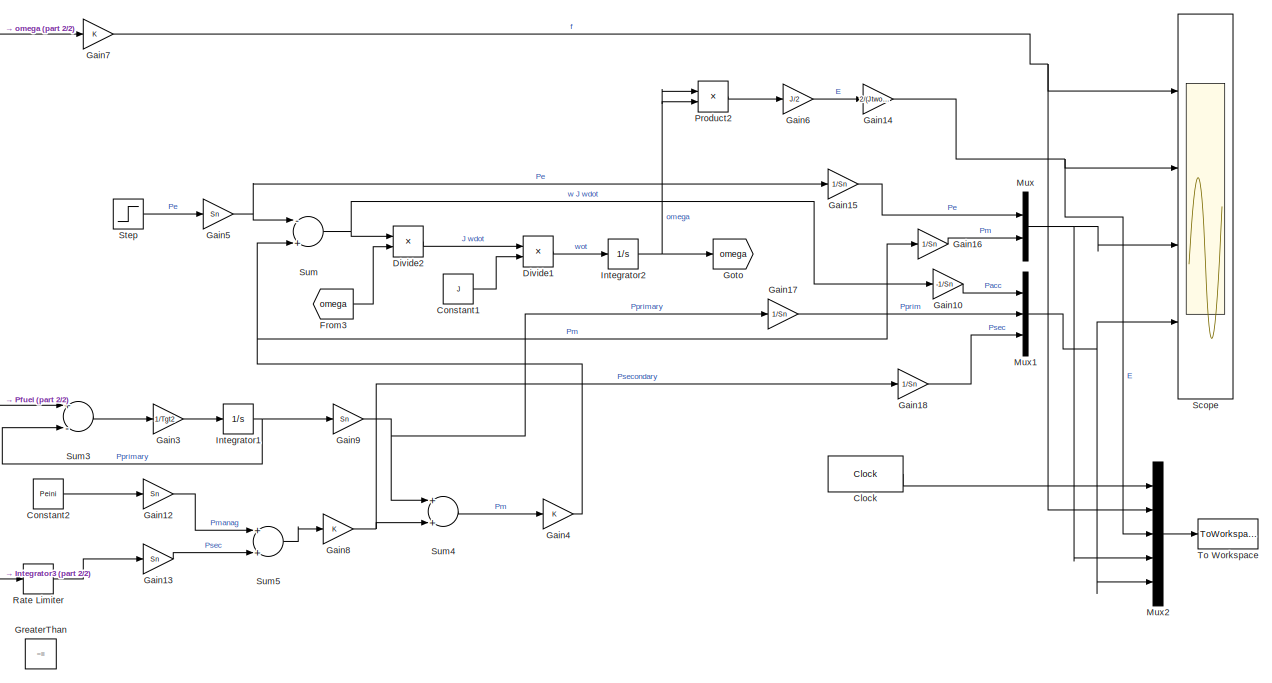
[diagram: root canvas - part 1/2, right side, full height]
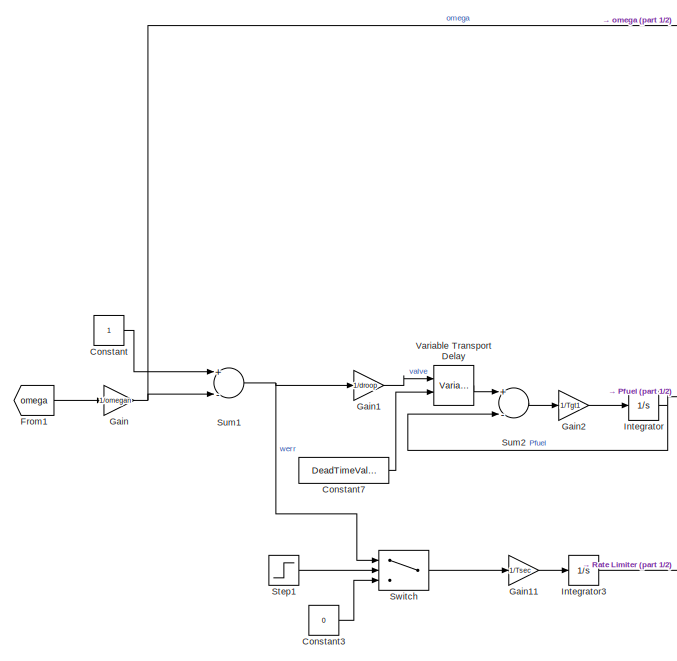
[diagram: root canvas - part 2/2, left side, full height]
MODEL slx_6105c109075a
KIND model
CONFIG AbsTol = auto
CONFIG EnableMultiTasking = off
CONFIG FixedStep = auto
CONFIG MaxStep = 0.1
CONFIG MinStep = auto
CONFIG RelTol = 1e-3
CONFIG SampleTimeConstraint = Unconstrained
CONFIG Solver = VariableStepAuto
CONFIG SolverName = VariableStepAuto
CONFIG StartTime = 0.0
CONFIG StopTime = Ttot
BLOCK [Clock] Clock
  DisplayTime = on
BLOCK [Constant] Constant
BLOCK [Constant] Constant1
  Value = J
BLOCK [Constant] Constant2
  Value = Peini
BLOCK [Constant] Constant3
  Value = 0
BLOCK [Constant] Constant7
  Value = DeadTimeValve
BLOCK [Product] Divide1
  InputSameDT = off
  Inputs = */
  OutDataTypeStr = Inherit: Inherit via internal rule
  Ports = [2, 1]
  RndMeth = Floor
  SaturateOnIntegerOverflow = off
BLOCK [Product] Divide2
  InputSameDT = off
  Inputs = */
  OutDataTypeStr = Inherit: Inherit via internal rule
  Ports = [2, 1]
  RndMeth = Floor
  SaturateOnIntegerOverflow = off
BLOCK [From] From1
  GotoTag = omega
BLOCK [From] From3
  GotoTag = omega
BLOCK [Gain] Gain
  Gain = 1/omegan
  OutDataTypeStr = Inherit: Inherit via internal rule
  ParamDataTypeStr = Inherit: Inherit via internal rule
  SaturateOnIntegerOverflow = off
BLOCK [Gain] Gain1
  Gain = 1/droop
  OutDataTypeStr = Inherit: Inherit via internal rule
  ParamDataTypeStr = Inherit: Inherit via internal rule
  SaturateOnIntegerOverflow = off
BLOCK [Gain] Gain10
  Gain = -1/Sn
  OutDataTypeStr = Inherit: Inherit via internal rule
  ParamDataTypeStr = Inherit: Inherit via internal rule
  SaturateOnIntegerOverflow = off
BLOCK [Gain] Gain11
  Gain = 1/Tsec
  OutDataTypeStr = Inherit: Inherit via internal rule
  ParamDataTypeStr = Inherit: Inherit via internal rule
  SaturateOnIntegerOverflow = off
BLOCK [Gain] Gain12
  Gain = Sn
  OutDataTypeStr = Inherit: Inherit via internal rule
  ParamDataTypeStr = Inherit: Inherit via internal rule
  SaturateOnIntegerOverflow = off
BLOCK [Gain] Gain13
  Gain = Sn
  OutDataTypeStr = Inherit: Inherit via internal rule
  ParamDataTypeStr = Inherit: Inherit via internal rule
  SaturateOnIntegerOverflow = off
BLOCK [Gain] Gain14
  Gain = 2/(Jtwo*omegan^2)
  OutDataTypeStr = Inherit: Inherit via internal rule
  ParamDataTypeStr = Inherit: Inherit via internal rule
  SaturateOnIntegerOverflow = off
BLOCK [Gain] Gain15
  Gain = 1/Sn
  OutDataTypeStr = Inherit: Inherit via internal rule
  ParamDataTypeStr = Inherit: Inherit via internal rule
  SaturateOnIntegerOverflow = off
BLOCK [Gain] Gain16
  Gain = 1/Sn
  OutDataTypeStr = Inherit: Inherit via internal rule
  ParamDataTypeStr = Inherit: Inherit via internal rule
  SaturateOnIntegerOverflow = off
BLOCK [Gain] Gain17
  Gain = 1/Sn
  OutDataTypeStr = Inherit: Inherit via internal rule
  ParamDataTypeStr = Inherit: Inherit via internal rule
  SaturateOnIntegerOverflow = off
BLOCK [Gain] Gain18
  Gain = 1/Sn
  OutDataTypeStr = Inherit: Inherit via internal rule
  ParamDataTypeStr = Inherit: Inherit via internal rule
  SaturateOnIntegerOverflow = off
BLOCK [Gain] Gain2
  Gain = 1/Tgt1
  OutDataTypeStr = Inherit: Inherit via internal rule
  ParamDataTypeStr = Inherit: Inherit via internal rule
  SaturateOnIntegerOverflow = off
BLOCK [Gain] Gain3
  Gain = 1/Tgt2
  OutDataTypeStr = Inherit: Inherit via internal rule
  ParamDataTypeStr = Inherit: Inherit via internal rule
  SaturateOnIntegerOverflow = off
BLOCK [Gain] Gain4
  OutDataTypeStr = Inherit: Inherit via internal rule
  ParamDataTypeStr = Inherit: Inherit via internal rule
  SaturateOnIntegerOverflow = off
BLOCK [Gain] Gain5
  Gain = Sn
  OutDataTypeStr = Inherit: Inherit via internal rule
  ParamDataTypeStr = Inherit: Inherit via internal rule
  SaturateOnIntegerOverflow = off
BLOCK [Gain] Gain6
  Gain = J/2
  OutDataTypeStr = Inherit: Inherit via internal rule
  ParamDataTypeStr = Inherit: Inherit via internal rule
  SaturateOnIntegerOverflow = off
BLOCK [Gain] Gain7
  OutDataTypeStr = Inherit: Inherit via internal rule
  ParamDataTypeStr = Inherit: Inherit via internal rule
  SaturateOnIntegerOverflow = off
BLOCK [Gain] Gain8
  OutDataTypeStr = Inherit: Inherit via internal rule
  ParamDataTypeStr = Inherit: Inherit via internal rule
  SaturateOnIntegerOverflow = off
BLOCK [Gain] Gain9
  Gain = Sn
  OutDataTypeStr = Inherit: Inherit via internal rule
  ParamDataTypeStr = Inherit: Inherit via internal rule
  SaturateOnIntegerOverflow = off
BLOCK [Goto] Goto
  GotoTag = omega
BLOCK [RelationalOperator] GreaterThan
  Commented = on
  InputSameDT = off
  Operator = ~=
  OutDataTypeStr = boolean
  Ports = [2, 1]
  RndMeth = Simplest
BLOCK [Integrator] Integrator
  Ports = [1, 1]
BLOCK [Integrator] Integrator1
  Ports = [1, 1]
BLOCK [Integrator] Integrator2
  InitialCondition = omegan
  Ports = [1, 1]
BLOCK [Integrator] Integrator3
  Ports = [1, 1]
BLOCK [Mux] Mux
  DisplayOption = bar
  Inputs = 2
  Ports = [2, 1]
BLOCK [Mux] Mux1
  DisplayOption = bar
  Inputs = 3
  Ports = [3, 1]
BLOCK [Mux] Mux2
  DisplayOption = bar
  Inputs = 5
  Ports = [5, 1]
BLOCK [Product] Product2
  InputSameDT = off
  OutDataTypeStr = Inherit: Inherit via internal rule
  Ports = [2, 1]
  RndMeth = Floor
  SaturateOnIntegerOverflow = off
BLOCK [RateLimiter] Rate Limiter
  Commented = through
  FallingSlewLimit = -RateSec
  RisingSlewLimit = RateSec
  SampleTimeMode = inherited
BLOCK [Scope] Scope
  Floating = off
  NumInputPorts = 4
  Ports = [4]
  ScopeSpecificationString = Simulink.scopes.TimeScopeBlockCfg('CurrentConfiguration', extmgr.ConfigurationSet(extmgr.Configuration('Core','General UI',true),extmgr.Configuration('Core','Source UI',true),extmgr.Configuration('Sources','WiredSimulink',true),extmgr.Configuration('Visuals','Time Domain',true,'SerializedDisplays',{struct('MinYLimReal','0.97822','MaxYLimReal','1.00242','YLabelReal','','MinYLimMag','0.98338','MaxYL...<+3788ch>
BLOCK [Step] Step
  After = Peini + Pestep
  Before = Peini
  SampleTime = 0
  Time = StepTime
BLOCK [Step] Step1
  SampleTime = 0
  Time = Tsec_on_delay
BLOCK [Sum] Sum
  InputSameDT = off
  Inputs = -+
  OutDataTypeStr = Inherit: Inherit via internal rule
  Ports = [2, 1]
  SaturateOnIntegerOverflow = off
BLOCK [Sum] Sum1
  InputSameDT = off
  Inputs = +-
  OutDataTypeStr = Inherit: Inherit via internal rule
  Ports = [2, 1]
  SaturateOnIntegerOverflow = off
BLOCK [Sum] Sum2
  InputSameDT = off
  Inputs = +-
  OutDataTypeStr = Inherit: Inherit via internal rule
  Ports = [2, 1]
  SaturateOnIntegerOverflow = off
BLOCK [Sum] Sum3
  InputSameDT = off
  Inputs = +-
  OutDataTypeStr = Inherit: Inherit via internal rule
  Ports = [2, 1]
  SaturateOnIntegerOverflow = off
BLOCK [Sum] Sum4
  InputSameDT = off
  OutDataTypeStr = Inherit: Inherit via internal rule
  Ports = [2, 1]
  SaturateOnIntegerOverflow = off
BLOCK [Sum] Sum5
  InputSameDT = off
  OutDataTypeStr = Inherit: Inherit via internal rule
  Ports = [2, 1]
  SaturateOnIntegerOverflow = off
BLOCK [Switch] Switch
  Criteria = u2 > Threshold
  InputSameDT = off
  SaturateOnIntegerOverflow = off
BLOCK [ToWorkspace] To Workspace
  FixptAsFi = on
  MaxDataPoints = inf
  Ports = [1]
  SampleTime = -1
  Save2DSignal = 3-D array (concatenate along third dimension)
  VariableName = rawdata
BLOCK [VariableTransportDelay] Variable Transport Delay
  MaximumDelay = 10
  MaximumPoints = 4096
  Ports = [2, 1]
  VariableDelayType = Variable transport delay
LINE Clock:1 -> Mux2:1
LINE Constant1:1 -> Divide1:2
LINE Constant2:1 -> Gain12:1
LINE Constant3:1 -> Switch:3
LINE Constant7:1 -> Variable Transport Delay:2
LINE Constant:1 -> Sum1:1
LINE Divide1:1 -> Integrator2:1
LINE Divide2:1 -> Divide1:1
LINE From1:1 -> Gain:1
LINE From3:1 -> Divide2:2
LINE Gain10:1 -> Mux1:1
LINE Gain11:1 -> Integrator3:1
LINE Gain12:1 -> Sum5:1
LINE Gain13:1 -> Sum5:2
NET Gain14:1 -> Mux2:3, Scope:2
LINE Gain15:1 -> Mux:1
LINE Gain16:1 -> Mux:2
LINE Gain17:1 -> Mux1:2
LINE Gain18:1 -> Mux1:3
LINE Gain1:1 -> Variable Transport Delay:1
LINE Gain2:1 -> Integrator:1
LINE Gain3:1 -> Integrator1:1
NET Gain4:1 -> Gain16:1, Sum:2
NET Gain5:1 -> Gain15:1, Sum:1
LINE Gain6:1 -> Gain14:1
NET Gain7:1 -> Mux2:2, Scope:1
NET Gain8:1 -> Gain18:1, Sum4:2
NET Gain9:1 -> Gain17:1, Sum4:1
NET Gain:1 -> Gain7:1, Sum1:2
NET Integrator1:1 -> Gain9:1, Sum3:2
NET Integrator2:1 -> Goto:1, Product2:1, Product2:2
LINE Integrator3:1 -> Rate Limiter:1
NET Integrator:1 -> Sum2:2, Sum3:1
NET Mux1:1 -> Mux2:5, Scope:4
LINE Mux2:1 -> To Workspace:1
NET Mux:1 -> Mux2:4, Scope:3
LINE Product2:1 -> Gain6:1
LINE Rate Limiter:1 -> Gain13:1
LINE Step1:1 -> Switch:2
LINE Step:1 -> Gain5:1
NET Sum1:1 -> Gain1:1, Switch:1
LINE Sum2:1 -> Gain2:1
LINE Sum3:1 -> Gain3:1
LINE Sum4:1 -> Gain4:1
LINE Sum5:1 -> Gain8:1
NET Sum:1 -> Divide2:1, Gain10:1
LINE Switch:1 -> Gain11:1
LINE Variable Transport Delay:1 -> Sum2:1
note: NET lines group one-source signal fan-out (src -> all destinations, sorted); 1:1 wires keep LINE
